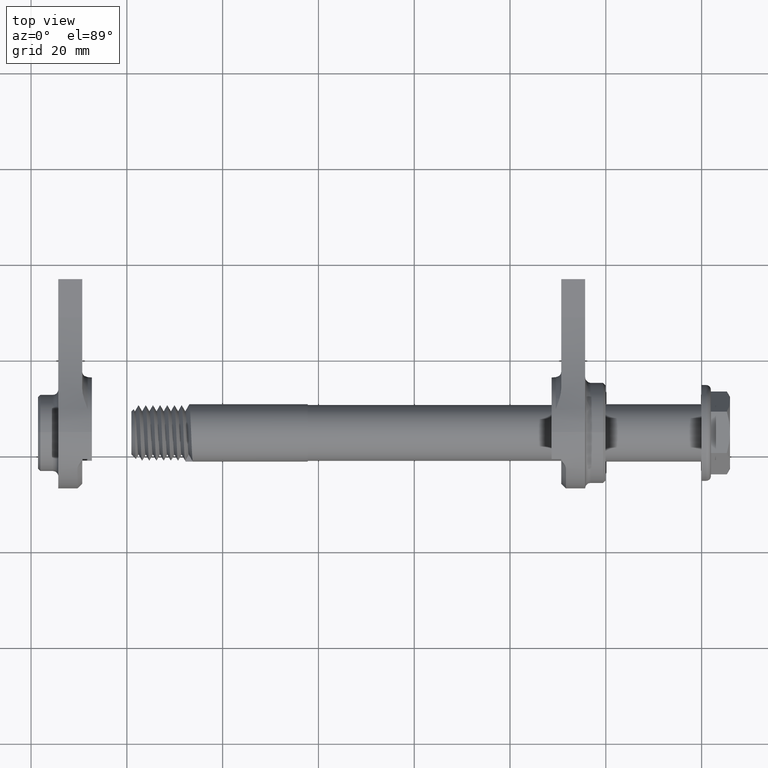
[diagram: clean part render]
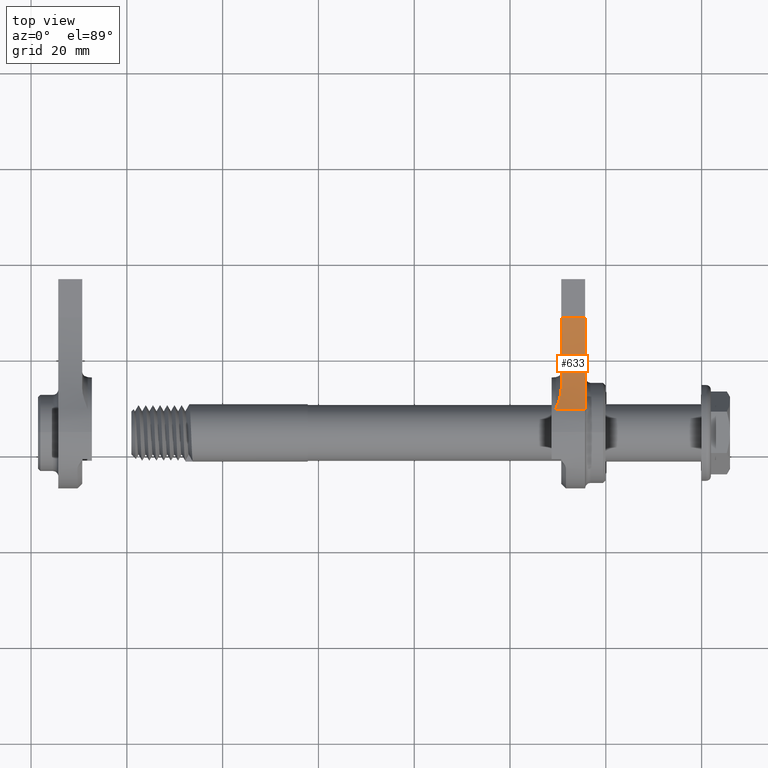
[diagram: same view with one face highlighted and labeled with its STEP entity id]
A machine part, top view. The second image highlights one B-rep face of the part: STEP entity #633.
In plain terms, the highlighted cylindrical surface (partial cylindrical patch) has radius 46.9269 mm, axis along (-1, -0, -0).
Its self-contained STEP definition (entity closure, byte-faithful):
#26 = CARTESIAN_POINT ( 'NONE',  ( 7.000000000000006200, 24.00000000000000000, 6.500000000000000000 ) ) ;
#73 = EDGE_CURVE ( 'NONE', #368, #3481, #570, .T. ) ;
#206 = VERTEX_POINT ( 'NONE', #4132 ) ;
#246 = AXIS2_PLACEMENT_3D ( 'NONE', #3925, #1887, #2031 ) ;
#368 = VERTEX_POINT ( 'NONE', #1672 ) ;
#473 = CARTESIAN_POINT ( 'NONE',  ( 0.8569999999999966500, 4.770911129323436300, 10.62063350257873000 ) ) ;
#483 = LINE ( 'NONE', #26, #2178 ) ;
#512 = CARTESIAN_POINT ( 'NONE',  ( 1.126571009856209200, 5.475243627265327500, 10.30941536489471000 ) ) ;
#514 = ORIENTED_EDGE ( 'NONE', *, *, #3074, .F. ) ;
#570 = LINE ( 'NONE', #2155, #1352 ) ;
#633 = ADVANCED_FACE ( 'NONE', ( #1463 ), #3373, .F. ) ;
#653 = CARTESIAN_POINT ( 'NONE',  ( 0.8569999999999966500, 4.770911129323436300, 10.62063350257873000 ) ) ;
#687 = EDGE_CURVE ( 'NONE', #3730, #3481, #1900, .T. ) ;
#813 = CARTESIAN_POINT ( 'NONE',  ( 1.383437853216594300, 6.188951242257808800, 10.00973063795493400 ) ) ;
#1009 = DIRECTION ( 'NONE',  ( -1.000000000000000000, 0.0000000000000000000, 0.0000000000000000000 ) ) ;
#1150 = CARTESIAN_POINT ( 'NONE',  ( 1.722333130628690600, 7.282719497653221900, 9.576909296876627000 ) ) ;
#1237 = CARTESIAN_POINT ( 'NONE',  ( 7.000000000000006200, 24.00000000000000000, 53.42694448765315900 ) ) ;
#1352 = VECTOR ( 'NONE', #3862, 1000.000000000000000 ) ;
#1395 = DIRECTION ( 'NONE',  ( -1.000000000000000000, -0.0000000000000000000, -0.0000000000000000000 ) ) ;
#1463 = FACE_OUTER_BOUND ( 'NONE', #3593, .T. ) ;
#1499 = CARTESIAN_POINT ( 'NONE',  ( 2.000000000000001800, 9.177650819074546700, 8.902388524611822600 ) ) ;
#1664 = EDGE_CURVE ( 'NONE', #206, #3730, #3167, .T. ) ;
#1672 = CARTESIAN_POINT ( 'NONE',  ( 7.000000000000006200, 4.770911129323436300, 10.62063350257872700 ) ) ;
#1741 = ORIENTED_EDGE ( 'NONE', *, *, #1664, .T. ) ;
#1887 = DIRECTION ( 'NONE',  ( -1.000000000000000000, -0.0000000000000000000, 0.0000000000000000000 ) ) ;
#1900 = B_SPLINE_CURVE_WITH_KNOTS ( 'NONE', 3,
 ( #1499, #4281, #4231, #3175, #1150, #4244, #813, #512, #2499, #473 ),
 .UNSPECIFIED., .F., .F.,
 ( 4, 2, 2, 2, 4 ),
 ( 0.0000000000000000000, 0.001217845896934585100, 0.002435691793869170300, 0.003653537690803755400, 0.004871383587738340600 ),
 .UNSPECIFIED. ) ;
#2022 = VERTEX_POINT ( 'NONE', #2682 ) ;
#2031 = DIRECTION ( 'NONE',  ( 0.0000000000000000000, 0.0000000000000000000, 1.000000000000000000 ) ) ;
#2155 = CARTESIAN_POINT ( 'NONE',  ( 7.000000000000006200, 4.770911129323436300, 10.62063350257872700 ) ) ;
#2178 = VECTOR ( 'NONE', #1395, 1000.000000000000000 ) ;
#2221 = ORIENTED_EDGE ( 'NONE', *, *, #73, .F. ) ;
#2499 = CARTESIAN_POINT ( 'NONE',  ( 0.9911182458625343900, 5.120420083095928600, 10.46363004728140400 ) ) ;
#2542 = DIRECTION ( 'NONE',  ( -1.000000000000000000, -0.0000000000000000000, -0.0000000000000000000 ) ) ;
#2620 = DIRECTION ( 'NONE',  ( 0.0000000000000000000, 0.0000000000000000000, 1.000000000000000000 ) ) ;
#2682 = CARTESIAN_POINT ( 'NONE',  ( 7.000000000000006200, 24.00000000000000000, 6.500000000000000000 ) ) ;
#2721 = AXIS2_PLACEMENT_3D ( 'NONE', #3033, #1009, #3392 ) ;
#2744 = AXIS2_PLACEMENT_3D ( 'NONE', #1237, #2542, #2620 ) ;
#2852 = ORIENTED_EDGE ( 'NONE', *, *, #687, .T. ) ;
#3033 = CARTESIAN_POINT ( 'NONE',  ( 2.000000000000001800, 24.00000000000000000, 53.42694448765315900 ) ) ;
#3074 = EDGE_CURVE ( 'NONE', #2022, #368, #4104, .T. ) ;
#3078 = CARTESIAN_POINT ( 'NONE',  ( 2.000000000000001800, 9.177650819074546700, 8.902388524611822600 ) ) ;
#3167 = CIRCLE ( 'NONE', #2721, 46.92694448765315900 ) ;
#3175 = CARTESIAN_POINT ( 'NONE',  ( 1.816592886743335900, 7.653958676333008500, 9.437114792465131100 ) ) ;
#3373 = CYLINDRICAL_SURFACE ( 'NONE', #2744, 46.92694448765315200 ) ;
#3392 = DIRECTION ( 'NONE',  ( 0.0000000000000000000, 0.0000000000000000000, -1.000000000000000000 ) ) ;
#3481 = VERTEX_POINT ( 'NONE', #653 ) ;
#3593 = EDGE_LOOP ( 'NONE', ( #3911, #1741, #2852, #2221, #514 ) ) ;
#3730 = VERTEX_POINT ( 'NONE', #3078 ) ;
#3746 = EDGE_CURVE ( 'NONE', #2022, #206, #483, .T. ) ;
#3862 = DIRECTION ( 'NONE',  ( -1.000000000000000000, -0.0000000000000000000, -0.0000000000000000000 ) ) ;
#3911 = ORIENTED_EDGE ( 'NONE', *, *, #3746, .T. ) ;
#3925 = CARTESIAN_POINT ( 'NONE',  ( 7.000000000000006200, 24.00000000000000000, 53.42694448765315900 ) ) ;
#4104 = CIRCLE ( 'NONE', #246, 46.92694448765315200 ) ;
#4132 = CARTESIAN_POINT ( 'NONE',  ( 2.000000000000001800, 24.00000000000000000, 6.499999999999999100 ) ) ;
#4231 = CARTESIAN_POINT ( 'NONE',  ( 1.954881015035181400, 8.406360393432645800, 9.164809570919091500 ) ) ;
#4244 = CARTESIAN_POINT ( 'NONE',  ( 1.505608893419990000, 6.549506038970957200, 9.863504378513786400 ) ) ;
#4281 = CARTESIAN_POINT ( 'NONE',  ( 2.000000000000001800, 8.787781835144150100, 9.032176999524988800 ) ) ;